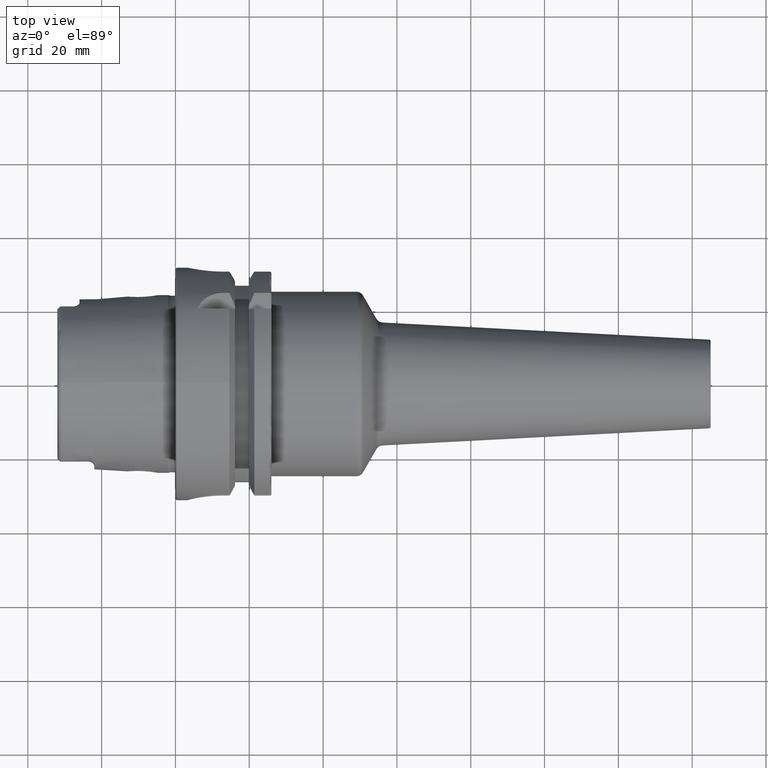
[diagram: clean part render]
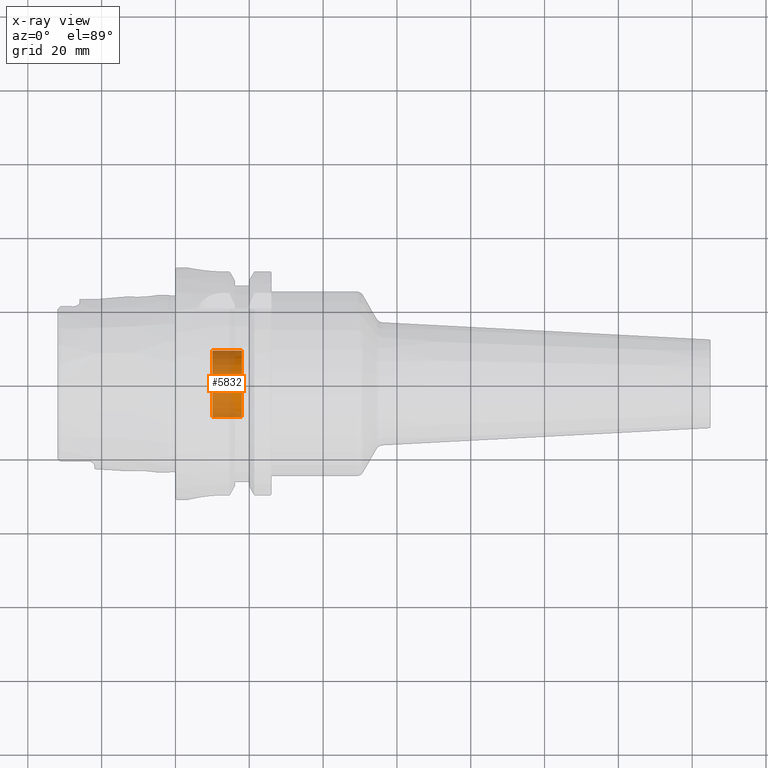
[diagram: x-ray — body ghosted, one internal face saturated and labeled with its STEP entity id]
A machine part, top view, then the same camera in x-ray: the body is ghosted and one INTERNAL B-rep face — a face not visible from any outside direction — is saturated and labeled: STEP entity #5832.
In plain terms, the highlighted cylindrical surface (edge-blend (fillet) strip) has radius 9 mm, axis along (-1, 0, 0).
Its self-contained STEP definition (entity closure, byte-faithful):
#5758=CARTESIAN_POINT('',(1.E1,0.E0,0.E0));
#5759=DIRECTION('',(1.E0,0.E0,0.E0));
#5760=DIRECTION('',(0.E0,1.E0,0.E0));
#5761=AXIS2_PLACEMENT_3D('',#5758,#5759,#5760);
#5763=DIRECTION('',(1.E0,0.E0,0.E0));
#5764=VECTOR('',#5763,8.E0);
#5765=CARTESIAN_POINT('',(1.E1,-9.E0,0.E0));
#5766=LINE('',#5765,#5764);
#5767=DIRECTION('',(1.E0,0.E0,0.E0));
#5768=VECTOR('',#5767,8.E0);
#5769=CARTESIAN_POINT('',(1.E1,9.E0,0.E0));
#5770=LINE('',#5769,#5768);
#5771=CARTESIAN_POINT('',(1.8E1,0.E0,0.E0));
#5772=DIRECTION('',(1.E0,0.E0,0.E0));
#5773=DIRECTION('',(0.E0,1.E0,0.E0));
#5774=AXIS2_PLACEMENT_3D('',#5771,#5772,#5773);
#5791=CARTESIAN_POINT('',(1.8E1,9.E0,0.E0));
#5792=CARTESIAN_POINT('',(1.8E1,-9.E0,0.E0));
#5793=VERTEX_POINT('',#5791);
#5794=VERTEX_POINT('',#5792);
#5795=CARTESIAN_POINT('',(1.E1,9.E0,0.E0));
#5796=CARTESIAN_POINT('',(1.E1,-9.E0,0.E0));
#5797=VERTEX_POINT('',#5795);
#5798=VERTEX_POINT('',#5796);
#5819=CARTESIAN_POINT('',(2.376268102482E1,0.E0,0.E0));
#5820=DIRECTION('',(-1.E0,0.E0,0.E0));
#5821=DIRECTION('',(0.E0,1.E0,0.E0));
#5822=AXIS2_PLACEMENT_3D('',#5819,#5820,#5821);
#5823=CYLINDRICAL_SURFACE('',#5822,9.E0);
#5825=ORIENTED_EDGE('',*,*,#5824,.T.);
#5826=ORIENTED_EDGE('',*,*,#5814,.T.);
#5828=ORIENTED_EDGE('',*,*,#5827,.F.);
#5829=ORIENTED_EDGE('',*,*,#5810,.F.);
#5830=EDGE_LOOP('',(#5825,#5826,#5828,#5829));
#5831=FACE_OUTER_BOUND('',#5830,.F.);
#5832=ADVANCED_FACE('',(#5831),#5823,.F.);
#5762=CIRCLE('',#5761,9.E0);
#5775=CIRCLE('',#5774,9.E0);
#5810=EDGE_CURVE('',#5797,#5793,#5770,.T.);
#5814=EDGE_CURVE('',#5798,#5794,#5766,.T.);
#5824=EDGE_CURVE('',#5797,#5798,#5762,.T.);
#5827=EDGE_CURVE('',#5793,#5794,#5775,.T.);